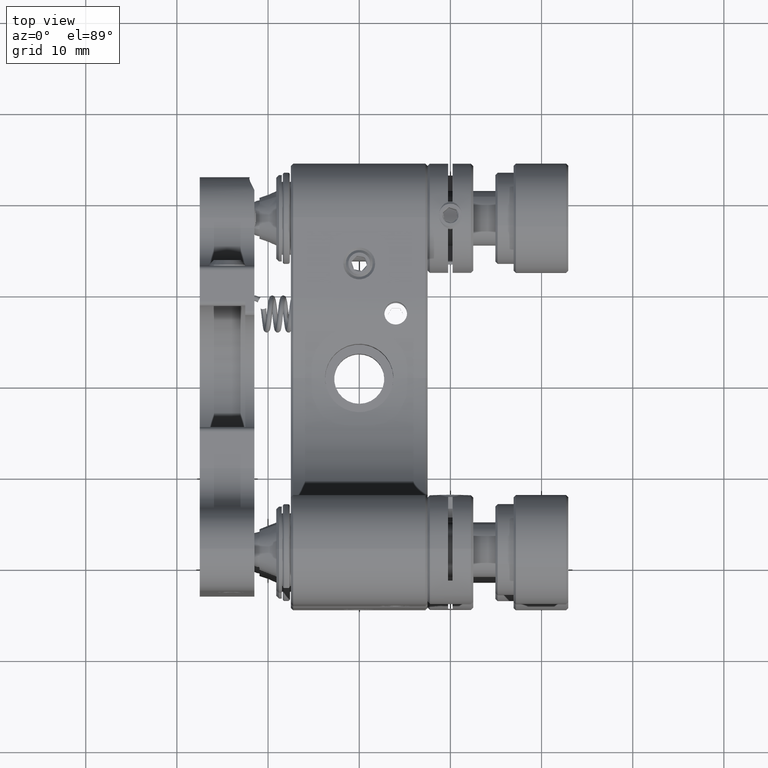
[diagram: clean part render]
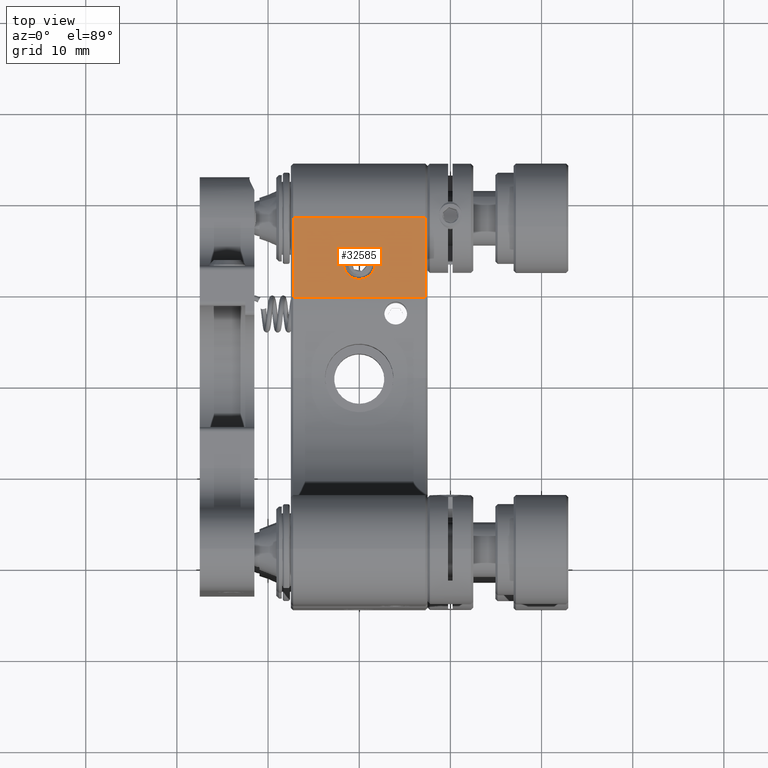
[diagram: same view with one face highlighted and labeled with its STEP entity id]
A machine part, top view. The second image highlights one B-rep face of the part: STEP entity #32585.
In plain terms, the highlighted planar face has unit normal (0, -0, -1).
Its self-contained STEP definition (entity closure, byte-faithful):
#129 = DIRECTION ( 'NONE',  ( 1.000000000000000000, 0.0000000000000000000, 0.0000000000000000000 ) ) ;
#396 = CARTESIAN_POINT ( 'NONE',  ( 0.0000000000000000000, 13.45000000000001172, -12.49999999999998934 ) ) ;
#616 = DIRECTION ( 'NONE',  ( 1.000000000000000000, 0.0000000000000000000, 0.0000000000000000000 ) ) ;
#981 = CARTESIAN_POINT ( 'NONE',  ( 7.249999999999985789, 9.700000000000001066, -12.49999999999999112 ) ) ;
#3954 = CIRCLE ( 'NONE', #37885, 1.750000000000000000 ) ;
#4247 = VECTOR ( 'NONE', #36383, 1000.000000000000000 ) ;
#4274 = CARTESIAN_POINT ( 'NONE',  ( -7.500000000000000000, 18.50000000000001421, -12.49999999999999289 ) ) ;
#8027 = EDGE_CURVE ( 'NONE', #34657, #27164, #23152, .T. ) ;
#8470 = FACE_OUTER_BOUND ( 'NONE', #16132, .T. ) ;
#8705 = VERTEX_POINT ( 'NONE', #25935 ) ;
#9112 = FACE_BOUND ( 'NONE', #11421, .T. ) ;
#9320 = DIRECTION ( 'NONE',  ( 1.000000000000000000, 0.0000000000000000000, 0.0000000000000000000 ) ) ;
#11342 = ORIENTED_EDGE ( 'NONE', *, *, #21964, .T. ) ;
#11421 = EDGE_LOOP ( 'NONE', ( #26795, #31491 ) ) ;
#11722 = DIRECTION ( 'NONE',  ( 0.0000000000000000000, 1.000000000000000000, -3.174375978451673470E-16 ) ) ;
#11943 = CARTESIAN_POINT ( 'NONE',  ( 7.249999999999985789, 18.50000000000001421, -12.49999999999999289 ) ) ;
#15000 = VERTEX_POINT ( 'NONE', #41273 ) ;
#16132 = EDGE_LOOP ( 'NONE', ( #34404, #11342, #30186, #30422 ) ) ;
#18242 = CARTESIAN_POINT ( 'NONE',  ( -7.500000000000000000, 29.50000000000001066, -12.49999999999999645 ) ) ;
#18298 = DIRECTION ( 'NONE',  ( -0.0000000000000000000, -0.0000000000000000000, 1.000000000000000000 ) ) ;
#19089 = PLANE ( 'NONE',  #40147 ) ;
#20666 = VERTEX_POINT ( 'NONE', #37512 ) ;
#21964 = EDGE_CURVE ( 'NONE', #27164, #15000, #40786, .T. ) ;
#22845 = VECTOR ( 'NONE', #11722, 1000.000000000000000 ) ;
#22981 = DIRECTION ( 'NONE',  ( 0.0000000000000000000, 1.000000000000000000, -3.174375978451673470E-16 ) ) ;
#23152 = LINE ( 'NONE', #4274, #4247 ) ;
#23336 = CARTESIAN_POINT ( 'NONE',  ( 0.0000000000000000000, 13.45000000000001172, -12.49999999999998934 ) ) ;
#23670 = CARTESIAN_POINT ( 'NONE',  ( -7.249999999999992895, 29.50000000000001066, -12.49999999999999645 ) ) ;
#25935 = CARTESIAN_POINT ( 'NONE',  ( 1.750000000000000000, 13.45000000000001172, -12.49999999999998934 ) ) ;
#26795 = ORIENTED_EDGE ( 'NONE', *, *, #37335, .F. ) ;
#27164 = VERTEX_POINT ( 'NONE', #31666 ) ;
#28385 = CIRCLE ( 'NONE', #29097, 1.750000000000000000 ) ;
#28842 = LINE ( 'NONE', #11943, #22845 ) ;
#29097 = AXIS2_PLACEMENT_3D ( 'NONE', #396, #39878, #9320 ) ;
#30186 = ORIENTED_EDGE ( 'NONE', *, *, #32989, .T. ) ;
#30203 = VERTEX_POINT ( 'NONE', #981 ) ;
#30422 = ORIENTED_EDGE ( 'NONE', *, *, #32568, .T. ) ;
#31491 = ORIENTED_EDGE ( 'NONE', *, *, #32762, .F. ) ;
#31666 = CARTESIAN_POINT ( 'NONE',  ( -7.249999999999992895, 18.50000000000001421, -12.49999999999999289 ) ) ;
#32319 = DIRECTION ( 'NONE',  ( 0.0000000000000000000, -3.174375978451673470E-16, -1.000000000000000000 ) ) ;
#32539 = VECTOR ( 'NONE', #616, 1000.000000000000000 ) ;
#32568 = EDGE_CURVE ( 'NONE', #30203, #34657, #28842, .T. ) ;
#32585 = ADVANCED_FACE ( 'NONE', ( #9112, #8470 ), #19089, .F. ) ;
#32762 = EDGE_CURVE ( 'NONE', #20666, #8705, #28385, .T. ) ;
#32989 = EDGE_CURVE ( 'NONE', #15000, #30203, #37704, .T. ) ;
#33112 = VECTOR ( 'NONE', #36897, 1000.000000000000000 ) ;
#34404 = ORIENTED_EDGE ( 'NONE', *, *, #8027, .T. ) ;
#34657 = VERTEX_POINT ( 'NONE', #42208 ) ;
#36383 = DIRECTION ( 'NONE',  ( -1.000000000000000000, -0.0000000000000000000, -0.0000000000000000000 ) ) ;
#36897 = DIRECTION ( 'NONE',  ( 0.0000000000000000000, -1.000000000000000000, 3.174375978451673470E-16 ) ) ;
#37335 = EDGE_CURVE ( 'NONE', #8705, #20666, #3954, .T. ) ;
#37512 = CARTESIAN_POINT ( 'NONE',  ( -1.750000000000000000, 13.45000000000001172, -12.49999999999998934 ) ) ;
#37704 = LINE ( 'NONE', #40531, #32539 ) ;
#37885 = AXIS2_PLACEMENT_3D ( 'NONE', #23336, #18298, #129 ) ;
#39878 = DIRECTION ( 'NONE',  ( -0.0000000000000000000, -0.0000000000000000000, 1.000000000000000000 ) ) ;
#40147 = AXIS2_PLACEMENT_3D ( 'NONE', #18242, #32319, #22981 ) ;
#40531 = CARTESIAN_POINT ( 'NONE',  ( -7.500000000000000000, 9.700000000000001066, -12.49999999999999112 ) ) ;
#40786 = LINE ( 'NONE', #23670, #33112 ) ;
#41273 = CARTESIAN_POINT ( 'NONE',  ( -7.249999999999992895, 9.700000000000001066, -12.49999999999999112 ) ) ;
#42208 = CARTESIAN_POINT ( 'NONE',  ( 7.249999999999985789, 18.50000000000001421, -12.49999999999999289 ) ) ;